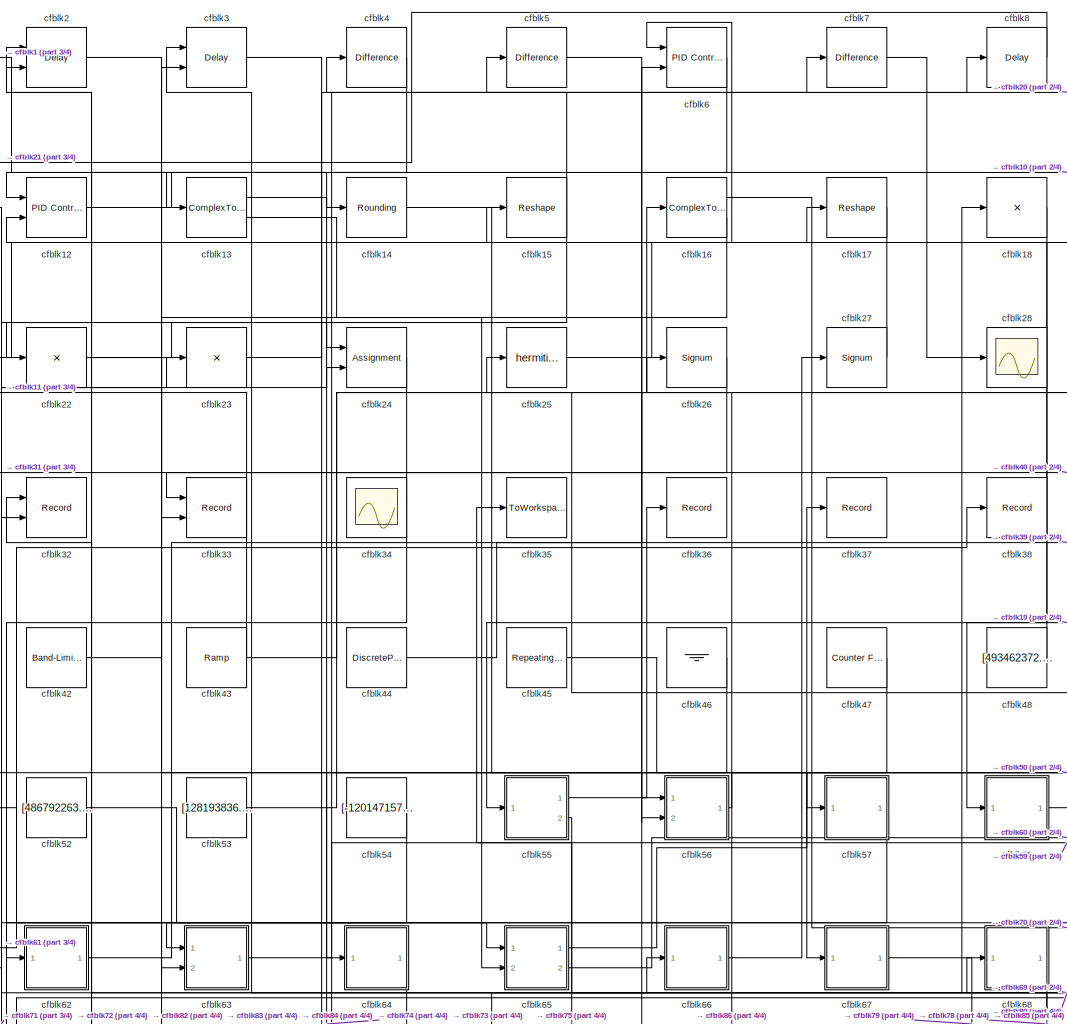
[diagram: root canvas - part 1/4, center side, full height]
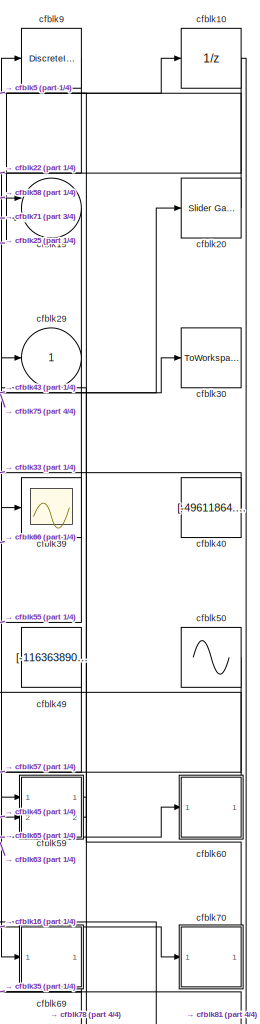
[diagram: root canvas - part 2/4, right side, full height]
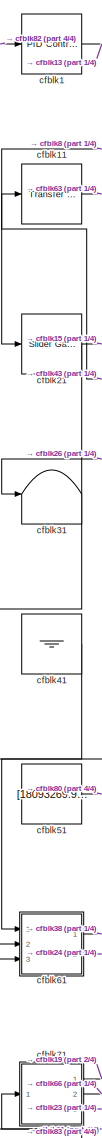
[diagram: root canvas - part 3/4, left side, full height]
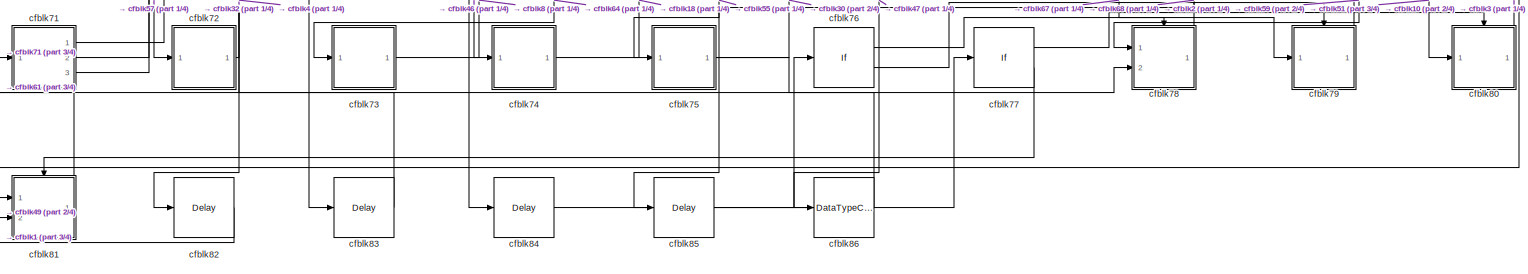
[diagram: root canvas - part 4/4, full width, bottom band]
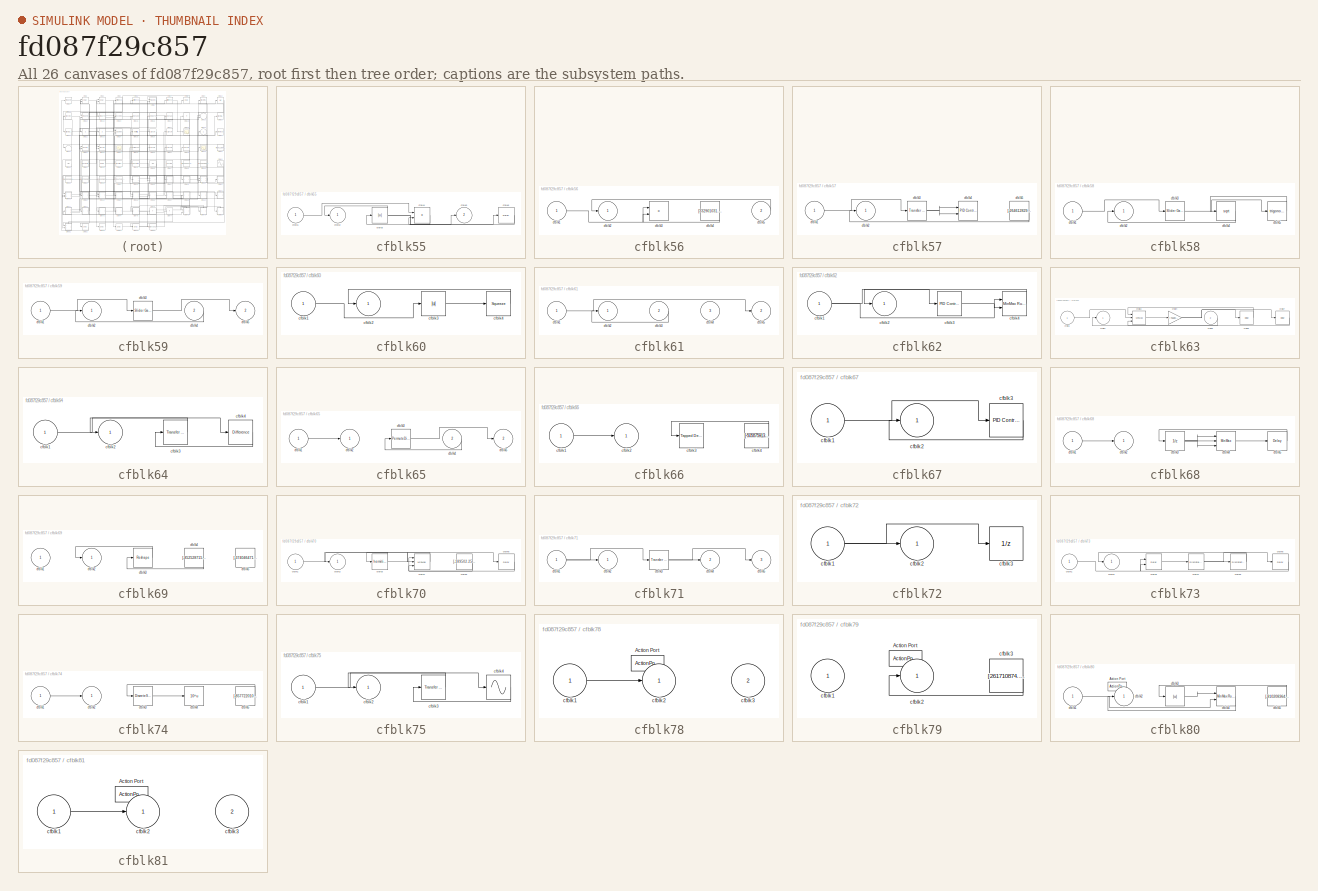
[diagram: thumbnail index - all 26 canvases of the model, root first then tree order]
MODEL slx_fd087f29c857
KIND model
CONFIG AbsTol = auto
CONFIG EnableMultiTasking = off
CONFIG FixedStep = auto
CONFIG MaxStep = auto
CONFIG MinStep = auto
CONFIG RelTol = 1e-3
CONFIG SampleTimeConstraint = Unconstrained
CONFIG SolverName = VariableStepAuto
CONFIG StartTime = 0.0
CONFIG StopTime = 10.0
BLOCK [Reference] cfblk1  REF=slpidlib/PID Controller
  Ports = [1, 1]
  SourceBlock = slpidlib/PID Controller
  SourceProductBaseCode = SL
  SourceType = PID 1dof
BLOCK [UnitDelay] cfblk10
  HasFrameUpgradeWarning = on
BLOCK [Reference] cfblk11  REF=simulink/Discrete/Transfer Fcn
Lead or Lag
  Ports = [1, 1]
  SourceBlock = simulink/Discrete/Transfer Fcn\nLead or Lag
  SourceProductBaseCode = SL
  SourceType = Lead or Lag Compensator
BLOCK [Reference] cfblk12  REF=slpidlib/PID Controller (2DOF)
  Ports = [2, 1]
  SourceBlock = slpidlib/PID Controller (2DOF)
  SourceProductBaseCode = SL
  SourceType = PID 2dof
BLOCK [ComplexToMagnitudeAngle] cfblk13
  Ports = [1, 2]
BLOCK [Rounding] cfblk14
BLOCK [Reshape] cfblk15
  Ports = [1, 1]
BLOCK [ComplexToRealImag] cfblk16
  Ports = [1, 2]
BLOCK [Reshape] cfblk17
  Ports = [1, 1]
BLOCK [Product] cfblk18
  Inputs = *
  Ports = [1, 1]
BLOCK [Sum] cfblk19
  Inputs = |++
  Ports = [2, 1]
BLOCK [Delay] cfblk2
  InputPortMap = u0,e6
  Ports = [2, 1]
  SampleTime = 1
  ShowEnablePort = on
BLOCK [Reference] cfblk20  REF=simulink/Math
Operations/Slider
Gain
  Ports = [1, 1]
  SourceBlock = simulink/Math\nOperations/Slider\nGain
  SourceProductBaseCode = SL
  SourceType = Slider Gain
BLOCK [Reference] cfblk21  REF=simulink/Math
Operations/Slider
Gain
  Ports = [1, 1]
  SourceBlock = simulink/Math\nOperations/Slider\nGain
  SourceProductBaseCode = SL
  SourceType = Slider Gain
BLOCK [Product] cfblk22
  Inputs = *
  Ports = [1, 1]
BLOCK [Product] cfblk23
  Inputs = *
  Ports = [1, 1]
BLOCK [Assignment] cfblk24
  DiagnosticForDimensions = Warning
  IndexOptions = Index vector (dialog)
  Indices = 1
  OutputSizes = 1
  Ports = [2, 1]
BLOCK [Math] cfblk25
  Operator = hermitian
  Ports = [1, 1]
BLOCK [Signum] cfblk26
BLOCK [Signum] cfblk27
BLOCK [Scope] cfblk28
  Floating = off
  NumInputPorts = 1
  Ports = [1]
BLOCK [Outport] cfblk29
BLOCK [Delay] cfblk3
  DelayLengthSource = Input port
  InputPortMap = u0,p1
  Ports = [2, 1]
  SampleTime = 1
BLOCK [ToWorkspace] cfblk30
  FixptAsFi = on
  MaxDataPoints = inf
  Ports = [1]
  SampleTime = -1
  SaveFormat = Timeseries
  VariableName = cuzdsqi
BLOCK [Terminator] cfblk31
BLOCK [Record] cfblk32
  CompatibilityTag = XY
  FileSettingsInternal = {"entries":[{"content":{"excelSettings":{"content":{},"type":"Streamout.ExcelSettings"}},"type":"Streamout.FileSettingStorage","uuid":"f6d8ed21-6af5-4db3-afc9-ec1e099addba"}],"packageUris":["http://schema.mathworks.com/mf0/streamout_blocks/R2020a"],"version":"1.0"}
  Layout = [1 1]
  Ports = [2]
  SignalsInternal = {"entries":[{"content":{"signals":[{"content":{"blockPath":["sampleModel102/cfblk32"],"channel":[],"dimensions":[1],"domain":"sampleModel102/cfblk32","lineColor":"#a2142f","plots":[1],"port":1,"sid":[""],"signalID":3589,"signalName":"cfblk72"},"type":"RecordBlkView.Signal","uuid":"6b8fad3b-4b17-4b11-8446-0ec6c851e5b6"},{"content":{"blockPath":["sampleModel102/cfblk32"],"channel":[],"dimensions":[1...<+383ch>
  VisualizationBindings = {"xyplotplugin":{"info":[{"series":[{"bindingParametersList":[{"parameter":"X-Axis","signalID":3589,"signalName":"cfblk72"},{"parameter":"Y-Axis","signalID":3593,"signalName":"cfblk15"}],"seriesID":30803}],"subplotID":1}]}}
BLOCK [Record] cfblk33
  CompatibilityTag = XY
  FileSettingsInternal = {"entries":[{"content":{"excelSettings":{"content":{},"type":"Streamout.ExcelSettings"}},"type":"Streamout.FileSettingStorage","uuid":"b4fc3817-fac7-4275-acff-5fc3bda7139a"}],"packageUris":["http://schema.mathworks.com/mf0/streamout_blocks/R2020a"],"version":"1.0"}
  Layout = [1 1]
  Ports = [2]
  SignalsInternal = {"entries":[{"content":{"signals":[{"content":{"blockPath":["sampleModel102/cfblk33"],"channel":[],"dimensions":[1],"domain":"sampleModel102/cfblk33","lineColor":"#a2142f","plots":[1],"port":1,"sid":[""],"signalID":3609,"signalName":"cfblk40"},"type":"RecordBlkView.Signal","uuid":"ea88233f-42ca-4b85-83e7-297f8d234544"},{"content":{"blockPath":["sampleModel102/cfblk33"],"channel":[],"dimensions":[1...<+385ch>
  VisualizationBindings = {"xyplotplugin":{"info":[{"series":[{"bindingParametersList":[{"parameter":"X-Axis","signalID":3609,"signalName":"cfblk40"},{"parameter":"Y-Axis","signalID":3613,"signalName":"cfblk16:2"}],"seriesID":20185}],"subplotID":1}]}}
BLOCK [Scope] cfblk34
  Floating = on
  NumInputPorts = 1
  Ports = []
BLOCK [ToWorkspace] cfblk35
  FixptAsFi = on
  MaxDataPoints = inf
  Ports = [1]
  SampleTime = -1
  SaveFormat = Timeseries
  VariableName = qqgrhys
BLOCK [Record] cfblk36
  FileSettingsInternal = {"entries":[{"content":{"excelSettings":{"content":{},"type":"Streamout.ExcelSettings"}},"type":"Streamout.FileSettingStorage","uuid":"f49b8802-491c-48e2-b463-9872ad503067"}],"packageUris":["http://schema.mathworks.com/mf0/streamout_blocks/R2020a"],"version":"1.0"}
  Ports = [1]
  SignalsInternal = {"entries":[{"content":{"signals":[{"content":{"blockPath":["sampleModel102/cfblk36"],"channel":[],"dimensions":[1],"domain":"sampleModel102/cfblk36","lineColor":"#fe330a","plots":[1],"port":1,"sid":[""],"signalID":3597,"signalName":"cfblk55:1"},"type":"RecordBlkView.Signal","uuid":"cd345222-1a80-4bd4-8334-ce9927075738"}]},"type":"RecordBlkView.InputSignals","uuid":"1f6f618d-4312-470a-b36a-32e9739...<+99ch>
  VisualizationBindings = {"sparklinesplugin":{"info":[{"bindingParametersList":[],"subplotID":1}]}}
BLOCK [Record] cfblk37
  FileSettingsInternal = {"entries":[{"content":{"excelSettings":{"content":{},"type":"Streamout.ExcelSettings"}},"type":"Streamout.FileSettingStorage","uuid":"ebc1de4c-6627-49d6-8de8-9985bf022b35"}],"packageUris":["http://schema.mathworks.com/mf0/streamout_blocks/R2020a"],"version":"1.0"}
  Ports = [1]
  SignalsInternal = {"entries":[{"content":{"signals":[{"content":{"blockPath":["sampleModel102/cfblk37"],"channel":[],"dimensions":[1],"domain":"sampleModel102/cfblk37","lineColor":"#22b573","plots":[1],"port":1,"sid":[""],"signalID":3601,"signalName":"cfblk65:1"},"type":"RecordBlkView.Signal","uuid":"3043d992-d6fd-4034-8b95-b78bb3b287e9"}]},"type":"RecordBlkView.InputSignals","uuid":"d0e64ec0-4589-4cc6-b335-2f4824e...<+99ch>
  VisualizationBindings = {"sparklinesplugin":{"info":[{"bindingParametersList":[],"subplotID":1}]}}
BLOCK [Record] cfblk38
  FileSettingsInternal = {"entries":[{"content":{"excelSettings":{"content":{},"type":"Streamout.ExcelSettings"}},"type":"Streamout.FileSettingStorage","uuid":"ade40d94-d49d-4e40-8dd3-766f1c0f04cb"}],"packageUris":["http://schema.mathworks.com/mf0/streamout_blocks/R2020a"],"version":"1.0"}
  Ports = [1]
  SignalsInternal = {"entries":[{"content":{"signals":[{"content":{"blockPath":["sampleModel102/cfblk38"],"channel":[],"dimensions":[1],"domain":"sampleModel102/cfblk38","lineColor":"#0072bd","plots":[1],"port":1,"sid":[""],"signalID":3605,"signalName":"cfblk61:1"},"type":"RecordBlkView.Signal","uuid":"08b48c8b-05fb-4bdc-94f2-8cad72ef393c"}]},"type":"RecordBlkView.InputSignals","uuid":"c2d99fc1-19ef-44dc-8402-65e5437...<+99ch>
  VisualizationBindings = {"sparklinesplugin":{"info":[{"bindingParametersList":[],"subplotID":1}]}}
BLOCK [Scope] cfblk39
  Floating = off
  NumInputPorts = 1
  Ports = [1]
BLOCK [Reference] cfblk4  REF=simulink/Discrete/Difference
  Ports = [1, 1]
  SourceBlock = simulink/Discrete/Difference
  SourceProductBaseCode = SL
  SourceType = Difference
BLOCK [Constant] cfblk40
  SampleTime = 1
  Value = [-49611864.900428]
BLOCK [Ground] cfblk41
BLOCK [Reference] cfblk42  REF=simulink/Sources/Band-Limited
White Noise
  Ports = [0, 1]
  SourceBlock = simulink/Sources/Band-Limited\nWhite Noise
  SourceProductBaseCode = SL
  SourceType = Band-Limited White Noise.
BLOCK [Reference] cfblk43  REF=simulink/Sources/Ramp
  Ports = [0, 1]
  SourceBlock = simulink/Sources/Ramp
  SourceProductBaseCode = SL
  SourceType = Ramp
BLOCK [DiscretePulseGenerator] cfblk44
  Amplitude = [-353640251.947889]
  Period = [38504605.523071]
  PhaseDelay = [5.000000]
  Ports = [0, 1]
  PulseType = Time based
  PulseWidth = 5
BLOCK [Reference] cfblk45  REF=simulink/Sources/Repeating
Sequence
  Ports = [0, 1]
  SourceBlock = simulink/Sources/Repeating\nSequence
  SourceProductBaseCode = SL
  SourceType = Repeating table
BLOCK [Ground] cfblk46
BLOCK [Reference] cfblk47  REF=simulink/Sources/Counter
Free-Running
  Ports = [0, 1]
  SourceBlock = simulink/Sources/Counter\nFree-Running
  SourceProductBaseCode = SL
  SourceType = Counter Free-Running
BLOCK [Constant] cfblk48
  SampleTime = 1
  Value = [493462372.943994]
BLOCK [Constant] cfblk49
  SampleTime = 1
  Value = [-116363890.596597]
BLOCK [Reference] cfblk5  REF=simulink/Discrete/Difference
  Ports = [1, 1]
  SourceBlock = simulink/Discrete/Difference
  SourceProductBaseCode = SL
  SourceType = Difference
BLOCK [Sin] cfblk50
  Amplitude = [286010.663311]
  Bias = [-574605498.694012]
  Ports = [0, 1]
  SampleTime = 0
BLOCK [Constant] cfblk51
  SampleTime = 1
  Value = [18093269.946260]
BLOCK [Constant] cfblk52
  SampleTime = 1
  Value = [486792263.989420]
BLOCK [Constant] cfblk53
  SampleTime = 1
  Value = [128193836.918313]
BLOCK [Constant] cfblk54
  SampleTime = 1
  Value = [-120147157.636991]
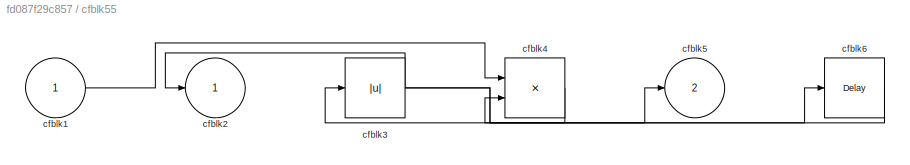
BLOCK [SubSystem] cfblk55
  Ports = [1, 2]
  RequestExecContextInheritance = off
BLOCK [Inport] cfblk55/cfblk1
BLOCK [Outport] cfblk55/cfblk2
BLOCK [Abs] cfblk55/cfblk3
  SaturateOnIntegerOverflow = off
BLOCK [Product] cfblk55/cfblk4
  Ports = [2, 1]
BLOCK [Outport] cfblk55/cfblk5
  Port = 2
BLOCK [Delay] cfblk55/cfblk6
  InputPortMap = u0
  Ports = [1, 1]
  SampleTime = 1
BLOCK [SubSystem] cfblk56
  Ports = [2, 1]
  RequestExecContextInheritance = off
BLOCK [Inport] cfblk56/cfblk1
BLOCK [Outport] cfblk56/cfblk2
BLOCK [Product] cfblk56/cfblk3
  Inputs = **
  Ports = [2, 1]
BLOCK [Constant] cfblk56/cfblk4
  SampleTime = 1
  Value = [332901031.671856]
BLOCK [Inport] cfblk56/cfblk5
  Port = 2
BLOCK [SubSystem] cfblk57
  Ports = [1, 1]
  RequestExecContextInheritance = off
BLOCK [Inport] cfblk57/cfblk1
BLOCK [Outport] cfblk57/cfblk2
BLOCK [Reference] cfblk57/cfblk3  REF=simulink/Discrete/Transfer Fcn
First Order
  Ports = [1, 1]
  SourceBlock = simulink/Discrete/Transfer Fcn\nFirst Order
  SourceProductBaseCode = SL
  SourceType = First Order Transfer Fcn
BLOCK [Reference] cfblk57/cfblk4  REF=slpidlib/PID Controller (2DOF)
  Ports = [2, 1]
  SourceBlock = slpidlib/PID Controller (2DOF)
  SourceProductBaseCode = SL
  SourceType = PID 2dof
BLOCK [Constant] cfblk57/cfblk5
  SampleTime = 1
  Value = [-264612829.943774]
BLOCK [SubSystem] cfblk58
  Ports = [1, 1]
  RequestExecContextInheritance = off
BLOCK [Inport] cfblk58/cfblk1
BLOCK [Outport] cfblk58/cfblk2
BLOCK [Reference] cfblk58/cfblk3  REF=simulink/Math
Operations/Slider
Gain
  Ports = [1, 1]
  SourceBlock = simulink/Math\nOperations/Slider\nGain
  SourceProductBaseCode = SL
  SourceType = Slider Gain
BLOCK [Sqrt] cfblk58/cfblk4
BLOCK [Trigonometry] cfblk58/cfblk5
  Ports = [1, 1]
BLOCK [SubSystem] cfblk59
  Ports = [2, 2]
  RequestExecContextInheritance = off
BLOCK [Inport] cfblk59/cfblk1
BLOCK [Outport] cfblk59/cfblk2
BLOCK [Reference] cfblk59/cfblk3  REF=simulink/Math
Operations/Slider
Gain
  Ports = [1, 1]
  SourceBlock = simulink/Math\nOperations/Slider\nGain
  SourceProductBaseCode = SL
  SourceType = Slider Gain
BLOCK [Inport] cfblk59/cfblk4
  Port = 2
BLOCK [Outport] cfblk59/cfblk5
  Port = 2
BLOCK [Reference] cfblk6  REF=slpidlib/PID Controller (2DOF)
  Ports = [2, 1]
  SourceBlock = slpidlib/PID Controller (2DOF)
  SourceProductBaseCode = SL
  SourceType = PID 2dof
BLOCK [SubSystem] cfblk60
  Ports = [1, 1]
  RequestExecContextInheritance = off
BLOCK [Inport] cfblk60/cfblk1
BLOCK [Outport] cfblk60/cfblk2
BLOCK [Abs] cfblk60/cfblk3
  SaturateOnIntegerOverflow = off
BLOCK [Squeeze] cfblk60/cfblk4
BLOCK [SubSystem] cfblk61
  Ports = [3, 2]
  RequestExecContextInheritance = off
BLOCK [Inport] cfblk61/cfblk1
BLOCK [Outport] cfblk61/cfblk2
BLOCK [Inport] cfblk61/cfblk3
  Port = 2
BLOCK [Inport] cfblk61/cfblk4
  Port = 3
BLOCK [Outport] cfblk61/cfblk5
  Port = 2
BLOCK [SubSystem] cfblk62
  Ports = [1, 1]
  RequestExecContextInheritance = off
BLOCK [Inport] cfblk62/cfblk1
BLOCK [Outport] cfblk62/cfblk2
BLOCK [Reference] cfblk62/cfblk3  REF=slpidlib/PID Controller
  Ports = [1, 1]
  SourceBlock = slpidlib/PID Controller
  SourceProductBaseCode = SL
  SourceType = PID 1dof
BLOCK [Reference] cfblk62/cfblk4  REF=simulink/Math
Operations/MinMax
Running
Resettable
  Ports = [2, 1]
  SourceBlock = simulink/Math\nOperations/MinMax\nRunning\nResettable
  SourceProductBaseCode = SL
  SourceType = MinMax Running Resettable
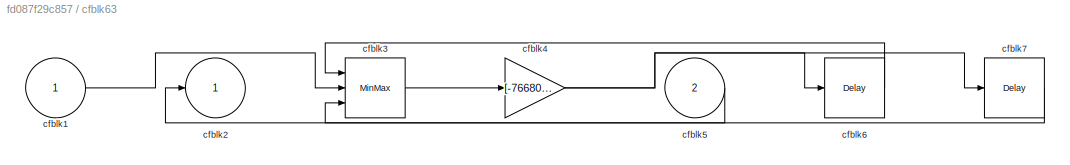
BLOCK [SubSystem] cfblk63
  Ports = [2, 1]
  RequestExecContextInheritance = off
BLOCK [Inport] cfblk63/cfblk1
BLOCK [Outport] cfblk63/cfblk2
BLOCK [MinMax] cfblk63/cfblk3
  Function = max
  Inputs = 3
  Ports = [3, 1]
BLOCK [Gain] cfblk63/cfblk4
  Gain = [-766803304.513850]
BLOCK [Inport] cfblk63/cfblk5
  Port = 2
BLOCK [Delay] cfblk63/cfblk6
  InputPortMap = u0
  Ports = [1, 1]
  SampleTime = 1
BLOCK [Delay] cfblk63/cfblk7
  InputPortMap = u0
  Ports = [1, 1]
  SampleTime = 1
BLOCK [SubSystem] cfblk64
  Ports = [1, 1]
  RequestExecContextInheritance = off
BLOCK [Inport] cfblk64/cfblk1
BLOCK [Outport] cfblk64/cfblk2
BLOCK [Reference] cfblk64/cfblk3  REF=simulink/Discrete/Transfer Fcn
Real Zero
  Ports = [1, 1]
  SourceBlock = simulink/Discrete/Transfer Fcn\nReal Zero
  SourceProductBaseCode = SL
  SourceType = Transfer Fcn Real Zero
BLOCK [Reference] cfblk64/cfblk4  REF=simulink/Discrete/Difference
  Ports = [1, 1]
  SourceBlock = simulink/Discrete/Difference
  SourceProductBaseCode = SL
  SourceType = Difference
BLOCK [SubSystem] cfblk65
  Ports = [2, 2]
  RequestExecContextInheritance = off
BLOCK [Inport] cfblk65/cfblk1
BLOCK [Outport] cfblk65/cfblk2
BLOCK [PermuteDimensions] cfblk65/cfblk3
BLOCK [Inport] cfblk65/cfblk4
  Port = 2
BLOCK [Outport] cfblk65/cfblk5
  Port = 2
BLOCK [SubSystem] cfblk66
  Ports = [1, 1]
  RequestExecContextInheritance = off
BLOCK [Inport] cfblk66/cfblk1
BLOCK [Outport] cfblk66/cfblk2
BLOCK [Reference] cfblk66/cfblk3  REF=simulink/Discrete/Tapped Delay
  Ports = [1, 1]
  SourceBlock = simulink/Discrete/Tapped Delay
  SourceProductBaseCode = SL
  SourceType = Tapped Delay Line
BLOCK [Constant] cfblk66/cfblk4
  SampleTime = 1
  Value = [-505875913.021781]
BLOCK [SubSystem] cfblk67
  Ports = [1, 1]
  RequestExecContextInheritance = off
BLOCK [Inport] cfblk67/cfblk1
BLOCK [Outport] cfblk67/cfblk2
BLOCK [Reference] cfblk67/cfblk3  REF=slpidlib/PID Controller
  Ports = [1, 1]
  SourceBlock = slpidlib/PID Controller
  SourceProductBaseCode = SL
  SourceType = PID 1dof
BLOCK [SubSystem] cfblk68
  Ports = [1, 1]
  RequestExecContextInheritance = off
BLOCK [Inport] cfblk68/cfblk1
BLOCK [Outport] cfblk68/cfblk2
BLOCK [UnitDelay] cfblk68/cfblk3
  HasFrameUpgradeWarning = on
BLOCK [MinMax] cfblk68/cfblk4
  Function = max
  Inputs = 3
  Ports = [3, 1]
BLOCK [Delay] cfblk68/cfblk5
  InputPortMap = u0
  Ports = [1, 1]
  SampleTime = 1
BLOCK [SubSystem] cfblk69
  Ports = [1, 1]
  RequestExecContextInheritance = off
BLOCK [Inport] cfblk69/cfblk1
BLOCK [Outport] cfblk69/cfblk2
BLOCK [Reshape] cfblk69/cfblk3
  Ports = [1, 1]
BLOCK [Constant] cfblk69/cfblk4
  SampleTime = 1
  Value = [-852528715.837021]
BLOCK [Constant] cfblk69/cfblk5
  SampleTime = 1
  Value = [-374046471.937527]
BLOCK [Reference] cfblk7  REF=simulink/Discrete/Difference
  Ports = [1, 1]
  SourceBlock = simulink/Discrete/Difference
  SourceProductBaseCode = SL
  SourceType = Difference
BLOCK [SubSystem] cfblk70
  Ports = [1, 1]
  RequestExecContextInheritance = off
BLOCK [Inport] cfblk70/cfblk1
BLOCK [Outport] cfblk70/cfblk2
BLOCK [Math] cfblk70/cfblk3
  Operator = hermitian
  Ports = [1, 1]
BLOCK [MinMax] cfblk70/cfblk4
  Function = max
  Inputs = 3
  Ports = [3, 1]
BLOCK [Constant] cfblk70/cfblk5
  SampleTime = 1
  Value = [-189502.255781]
BLOCK [Delay] cfblk70/cfblk6
  InputPortMap = u0
  Ports = [1, 1]
  SampleTime = 1
BLOCK [SubSystem] cfblk71
  Ports = [1, 3]
  RequestExecContextInheritance = off
BLOCK [Inport] cfblk71/cfblk1
BLOCK [Outport] cfblk71/cfblk2
BLOCK [Reference] cfblk71/cfblk3  REF=simulink/Discrete/Transfer Fcn
Lead or Lag
  Ports = [1, 1]
  SourceBlock = simulink/Discrete/Transfer Fcn\nLead or Lag
  SourceProductBaseCode = SL
  SourceType = Lead or Lag Compensator
BLOCK [Outport] cfblk71/cfblk4
  Port = 2
BLOCK [Outport] cfblk71/cfblk5
  Port = 3
BLOCK [SubSystem] cfblk72
  Ports = [1, 1]
  RequestExecContextInheritance = off
BLOCK [Inport] cfblk72/cfblk1
BLOCK [Outport] cfblk72/cfblk2
BLOCK [UnitDelay] cfblk72/cfblk3
  HasFrameUpgradeWarning = on
BLOCK [SubSystem] cfblk73
  Ports = [1, 1]
  RequestExecContextInheritance = off
BLOCK [Inport] cfblk73/cfblk1
BLOCK [Outport] cfblk73/cfblk2
BLOCK [Delay] cfblk73/cfblk3
  DelayLengthSource = Input port
  InputPortMap = u0,p1
  Ports = [2, 1]
  SampleTime = 1
BLOCK [DiscreteIntegrator] cfblk73/cfblk4
  ICPrevOutput = DiscIntNeverNeededParam
  ICPrevScaledInput = DiscIntNeverNeededParam
  InitialConditionSetting = Auto
  Ports = [1, 1]
BLOCK [DiscreteFir] cfblk73/cfblk5
  InputPortMap = u0
  OutputPortMap = o0
  Ports = [1, 1]
  SampleTime = 1
BLOCK [Delay] cfblk73/cfblk6
  InputPortMap = u0
  Ports = [1, 1]
  SampleTime = 1
BLOCK [SubSystem] cfblk74
  Ports = [1, 1]
  RequestExecContextInheritance = off
BLOCK [Inport] cfblk74/cfblk1
BLOCK [Outport] cfblk74/cfblk2
BLOCK [DiscreteStateSpace] cfblk74/cfblk3
BLOCK [Math] cfblk74/cfblk4
  Operator = 10^u
  Ports = [1, 1]
BLOCK [Constant] cfblk74/cfblk5
  SampleTime = 1
  Value = [-857722010.661786]
BLOCK [SubSystem] cfblk75
  Ports = [1, 1]
  RequestExecContextInheritance = off
BLOCK [Inport] cfblk75/cfblk1
BLOCK [Outport] cfblk75/cfblk2
BLOCK [Reference] cfblk75/cfblk3  REF=simulink/Discrete/Transfer Fcn
Real Zero
  Ports = [1, 1]
  SourceBlock = simulink/Discrete/Transfer Fcn\nReal Zero
  SourceProductBaseCode = SL
  SourceType = Transfer Fcn Real Zero
BLOCK [Sin] cfblk75/cfblk4
  Ports = [1, 1]
  SampleTime = 0
  TimeSource = Use external signal
BLOCK [If] cfblk76
  IfExpression = u1 >= 0
  Ports = [1, 2]
  SampleTime = 1
BLOCK [If] cfblk77
  IfExpression = u1 >= 0
  Ports = [1, 2]
  SampleTime = 1
BLOCK [SubSystem] cfblk78
  Ports = [2, 1, 0, 0, 0, 0, 0, 1]
  RequestExecContextInheritance = off
  TreatAsAtomicUnit = on
BLOCK [ActionPort] cfblk78/Action Port
  ActionPortLabel = if(u1 >= 0)
BLOCK [Inport] cfblk78/cfblk1
BLOCK [Outport] cfblk78/cfblk2
BLOCK [Inport] cfblk78/cfblk3
  Port = 2
BLOCK [SubSystem] cfblk79
  Ports = [1, 1, 0, 0, 0, 0, 0, 1]
  RequestExecContextInheritance = off
  TreatAsAtomicUnit = on
BLOCK [ActionPort] cfblk79/Action Port
  ActionPortLabel = else
BLOCK [Inport] cfblk79/cfblk1
BLOCK [Outport] cfblk79/cfblk2
BLOCK [Constant] cfblk79/cfblk3
  SampleTime = 1
  Value = [261710874.838748]
BLOCK [Delay] cfblk8
  InputPortMap = u0
  Ports = [1, 1]
  SampleTime = 1
BLOCK [SubSystem] cfblk80
  Ports = [1, 1, 0, 0, 0, 0, 0, 1]
  RequestExecContextInheritance = off
  TreatAsAtomicUnit = on
BLOCK [ActionPort] cfblk80/Action Port
  ActionPortLabel = if(u1 >= 0)
BLOCK [Inport] cfblk80/cfblk1
BLOCK [Outport] cfblk80/cfblk2
BLOCK [Abs] cfblk80/cfblk3
  SaturateOnIntegerOverflow = off
BLOCK [Reference] cfblk80/cfblk4  REF=simulink/Math
Operations/MinMax
Running
Resettable
  Ports = [2, 1]
  SourceBlock = simulink/Math\nOperations/MinMax\nRunning\nResettable
  SourceProductBaseCode = SL
  SourceType = MinMax Running Resettable
BLOCK [Constant] cfblk80/cfblk5
  SampleTime = 1
  Value = [-810208364.099518]
BLOCK [SubSystem] cfblk81
  Ports = [2, 1, 0, 0, 0, 0, 0, 1]
  RequestExecContextInheritance = off
  TreatAsAtomicUnit = on
BLOCK [ActionPort] cfblk81/Action Port
  ActionPortLabel = else
BLOCK [Inport] cfblk81/cfblk1
BLOCK [Outport] cfblk81/cfblk2
BLOCK [Inport] cfblk81/cfblk3
  Port = 2
BLOCK [Delay] cfblk82
  InputPortMap = u0
  Ports = [1, 1]
  SampleTime = 1
BLOCK [Delay] cfblk83
  InputPortMap = u0
  Ports = [1, 1]
  SampleTime = 1
BLOCK [Delay] cfblk84
  InputPortMap = u0
  Ports = [1, 1]
  SampleTime = 1
BLOCK [Delay] cfblk85
  InputPortMap = u0
  Ports = [1, 1]
  SampleTime = 1
BLOCK [DataTypeConversion] cfblk86
  RndMeth = Floor
  SaturateOnIntegerOverflow = off
BLOCK [DiscreteIntegrator] cfblk9
  ICPrevOutput = DiscIntNeverNeededParam
  ICPrevScaledInput = DiscIntNeverNeededParam
  InitialConditionSetting = Auto
  Ports = [1, 1]
NET cfblk10:1 -> cfblk22:1, cfblk81:1
LINE cfblk11:1 -> cfblk63:2
LINE cfblk12:1 -> cfblk14:1
LINE cfblk13:1 -> cfblk64:1
LINE cfblk13:2 -> cfblk65:2
LINE cfblk14:1 -> cfblk67:1
NET cfblk15:1 -> cfblk32:2, cfblk4:1
LINE cfblk16:1 -> cfblk70:1
LINE cfblk16:2 -> cfblk33:2
LINE cfblk17:1 -> cfblk12:2
LINE cfblk18:1 -> cfblk58:1
LINE cfblk19:1 -> cfblk55:1
LINE cfblk1:1 -> cfblk13:1
LINE cfblk20:1 -> cfblk5:1
NET cfblk21:1 -> cfblk15:1, cfblk61:3
NET cfblk22:1 -> cfblk24:1, cfblk56:2
LINE cfblk23:1 -> cfblk7:1
LINE cfblk24:1 -> cfblk62:1
LINE cfblk25:1 -> cfblk10:1
LINE cfblk26:1 -> cfblk31:1
LINE cfblk27:1 -> cfblk6:1
LINE cfblk2:1 -> cfblk83:1
LINE cfblk3:1 -> cfblk84:1
LINE cfblk40:1 -> cfblk33:1
LINE cfblk41:1 -> cfblk61:1
LINE cfblk42:1 -> cfblk3:2
NET cfblk43:1 -> cfblk11:1, cfblk20:1
LINE cfblk44:1 -> cfblk6:2
LINE cfblk45:1 -> cfblk59:2
LINE cfblk46:1 -> cfblk74:1
LINE cfblk47:1 -> cfblk86:1
LINE cfblk48:1 -> cfblk17:1
LINE cfblk49:1 -> cfblk81:2
LINE cfblk4:1 -> cfblk82:1
LINE cfblk50:1 -> cfblk57:1
LINE cfblk51:1 -> cfblk80:1
LINE cfblk52:1 -> cfblk65:1
LINE cfblk53:1 -> cfblk16:1
LINE cfblk54:1 -> cfblk63:1
LINE cfblk55/cfblk1:1 -> cfblk55/cfblk4:1
NET cfblk55/cfblk3:1 -> cfblk55/cfblk2:1, cfblk55/cfblk5:1, cfblk55/cfblk6:1
LINE cfblk55/cfblk4:1 -> cfblk55/cfblk3:1
LINE cfblk55/cfblk6:1 -> cfblk55/cfblk4:2
LINE cfblk55:1 -> cfblk36:1
LINE cfblk55:2 -> cfblk75:1
LINE cfblk56/cfblk1:1 -> cfblk56/cfblk3:1
LINE cfblk56/cfblk4:1 -> cfblk56/cfblk3:2
LINE cfblk56/cfblk5:1 -> cfblk56/cfblk2:1
LINE cfblk56:1 -> cfblk26:1
LINE cfblk57/cfblk1:1 -> cfblk57/cfblk3:1
NET cfblk57/cfblk3:1 -> cfblk57/cfblk4:1, cfblk57/cfblk4:2
LINE cfblk57/cfblk5:1 -> cfblk57/cfblk2:1
LINE cfblk57:1 -> cfblk72:1
LINE cfblk58/cfblk1:1 -> cfblk58/cfblk3:1
LINE cfblk58/cfblk3:1 -> cfblk58/cfblk5:1
LINE cfblk58/cfblk4:1 -> cfblk58/cfblk2:1
LINE cfblk58/cfblk5:1 -> cfblk58/cfblk4:1
LINE cfblk58:1 -> cfblk19:1
LINE cfblk59/cfblk1:1 -> cfblk59/cfblk3:1
LINE cfblk59/cfblk3:1 -> cfblk59/cfblk5:1
LINE cfblk59/cfblk4:1 -> cfblk59/cfblk2:1
LINE cfblk59:1 -> cfblk78:1
LINE cfblk59:2 -> cfblk29:1
LINE cfblk5:1 -> cfblk56:1
LINE cfblk60/cfblk1:1 -> cfblk60/cfblk3:1
LINE cfblk60/cfblk3:1 -> cfblk60/cfblk4:1
LINE cfblk60/cfblk4:1 -> cfblk60/cfblk2:1
LINE cfblk60:1 -> cfblk25:1
LINE cfblk61/cfblk1:1 -> cfblk61/cfblk5:1
LINE cfblk61/cfblk3:1 -> cfblk61/cfblk2:1
LINE cfblk61:1 -> cfblk38:1
LINE cfblk61:2 -> cfblk24:2
NET cfblk62/cfblk1:1 -> cfblk62/cfblk3:1, cfblk62/cfblk4:1
LINE cfblk62/cfblk3:1 -> cfblk62/cfblk4:2
LINE cfblk62/cfblk4:1 -> cfblk62/cfblk2:1
LINE cfblk62:1 -> cfblk27:1
LINE cfblk63/cfblk1:1 -> cfblk63/cfblk3:2
LINE cfblk63/cfblk3:1 -> cfblk63/cfblk4:1
NET cfblk63/cfblk4:1 -> cfblk63/cfblk6:1, cfblk63/cfblk7:1
LINE cfblk63/cfblk5:1 -> cfblk63/cfblk2:1
LINE cfblk63/cfblk6:1 -> cfblk63/cfblk3:1
LINE cfblk63/cfblk7:1 -> cfblk63/cfblk3:3
LINE cfblk63:1 -> cfblk59:1
LINE cfblk64/cfblk1:1 -> cfblk64/cfblk4:1
LINE cfblk64/cfblk3:1 -> cfblk64/cfblk2:1
LINE cfblk64/cfblk4:1 -> cfblk64/cfblk3:1
LINE cfblk64:1 -> cfblk73:1
LINE cfblk65/cfblk1:1 -> cfblk65/cfblk2:1
LINE cfblk65/cfblk3:1 -> cfblk65/cfblk5:1
LINE cfblk65/cfblk4:1 -> cfblk65/cfblk3:1
LINE cfblk65:1 -> cfblk37:1
LINE cfblk65:2 -> cfblk60:1
LINE cfblk66/cfblk1:1 -> cfblk66/cfblk2:1
LINE cfblk66/cfblk4:1 -> cfblk66/cfblk3:1
LINE cfblk66:1 -> cfblk39:1
LINE cfblk67/cfblk1:1 -> cfblk67/cfblk3:1
LINE cfblk67/cfblk3:1 -> cfblk67/cfblk2:1
LINE cfblk67:1 -> cfblk79:1
LINE cfblk68/cfblk1:1 -> cfblk68/cfblk2:1
NET cfblk68/cfblk3:1 -> cfblk68/cfblk4:1, cfblk68/cfblk4:2, cfblk68/cfblk4:3
LINE cfblk68/cfblk4:1 -> cfblk68/cfblk5:1
LINE cfblk68/cfblk5:1 -> cfblk68/cfblk3:1
LINE cfblk68:1 -> cfblk85:1
LINE cfblk69/cfblk3:1 -> cfblk69/cfblk2:1
LINE cfblk69/cfblk4:1 -> cfblk69/cfblk3:1
LINE cfblk69:1 -> cfblk35:1
LINE cfblk6:1 -> cfblk12:1
LINE cfblk70/cfblk1:1 -> cfblk70/cfblk4:2
NET cfblk70/cfblk3:1 -> cfblk70/cfblk2:1, cfblk70/cfblk6:1
LINE cfblk70/cfblk4:1 -> cfblk70/cfblk3:1
LINE cfblk70/cfblk5:1 -> cfblk70/cfblk4:1
LINE cfblk70/cfblk6:1 -> cfblk70/cfblk4:3
LINE cfblk70:1 -> cfblk9:1
NET cfblk71/cfblk1:1 -> cfblk71/cfblk2:1, cfblk71/cfblk3:1
NET cfblk71/cfblk3:1 -> cfblk71/cfblk4:1, cfblk71/cfblk5:1
LINE cfblk71:1 -> cfblk19:2
LINE cfblk71:2 -> cfblk66:1
LINE cfblk71:3 -> cfblk23:1
NET cfblk72/cfblk1:1 -> cfblk72/cfblk2:1, cfblk72/cfblk3:1
LINE cfblk72:1 -> cfblk32:1
LINE cfblk73/cfblk1:1 -> cfblk73/cfblk3:1
LINE cfblk73/cfblk3:1 -> cfblk73/cfblk4:1
NET cfblk73/cfblk4:1 -> cfblk73/cfblk5:1, cfblk73/cfblk6:1
LINE cfblk73/cfblk5:1 -> cfblk73/cfblk2:1
LINE cfblk73/cfblk6:1 -> cfblk73/cfblk3:2
LINE cfblk73:1 -> cfblk8:1
LINE cfblk74/cfblk1:1 -> cfblk74/cfblk2:1
LINE cfblk74/cfblk3:1 -> cfblk74/cfblk4:1
LINE cfblk74/cfblk5:1 -> cfblk74/cfblk3:1
LINE cfblk74:1 -> cfblk18:1
LINE cfblk75/cfblk1:1 -> cfblk75/cfblk4:1
LINE cfblk75/cfblk3:1 -> cfblk75/cfblk2:1
LINE cfblk75/cfblk4:1 -> cfblk75/cfblk3:1
NET cfblk75:1 -> cfblk30:1, cfblk78:2
LINE cfblk76:1 -> cfblk78:ifaction
LINE cfblk76:2 -> cfblk79:ifaction
LINE cfblk77:1 -> cfblk80:ifaction
LINE cfblk77:2 -> cfblk81:ifaction
LINE cfblk78/cfblk1:1 -> cfblk78/cfblk2:1
LINE cfblk78:1 -> cfblk68:1
LINE cfblk79/cfblk3:1 -> cfblk79/cfblk2:1
LINE cfblk79:1 -> cfblk2:1
LINE cfblk7:1 -> cfblk28:1
LINE cfblk80/cfblk1:1 -> cfblk80/cfblk4:2
LINE cfblk80/cfblk3:1 -> cfblk80/cfblk4:1
LINE cfblk80/cfblk4:1 -> cfblk80/cfblk2:1
LINE cfblk80/cfblk5:1 -> cfblk80/cfblk3:1
LINE cfblk80:1 -> cfblk3:1
LINE cfblk81/cfblk1:1 -> cfblk81/cfblk2:1
LINE cfblk81:1 -> cfblk71:1
LINE cfblk82:1 -> cfblk1:1
LINE cfblk83:1 -> cfblk61:2
LINE cfblk84:1 -> cfblk76:1
LINE cfblk85:1 -> cfblk77:1
LINE cfblk86:1 -> cfblk2:2
LINE cfblk8:1 -> cfblk21:1
LINE cfblk9:1 -> cfblk69:1
note: NET lines group one-source signal fan-out (src -> all destinations, sorted); 1:1 wires keep LINE
